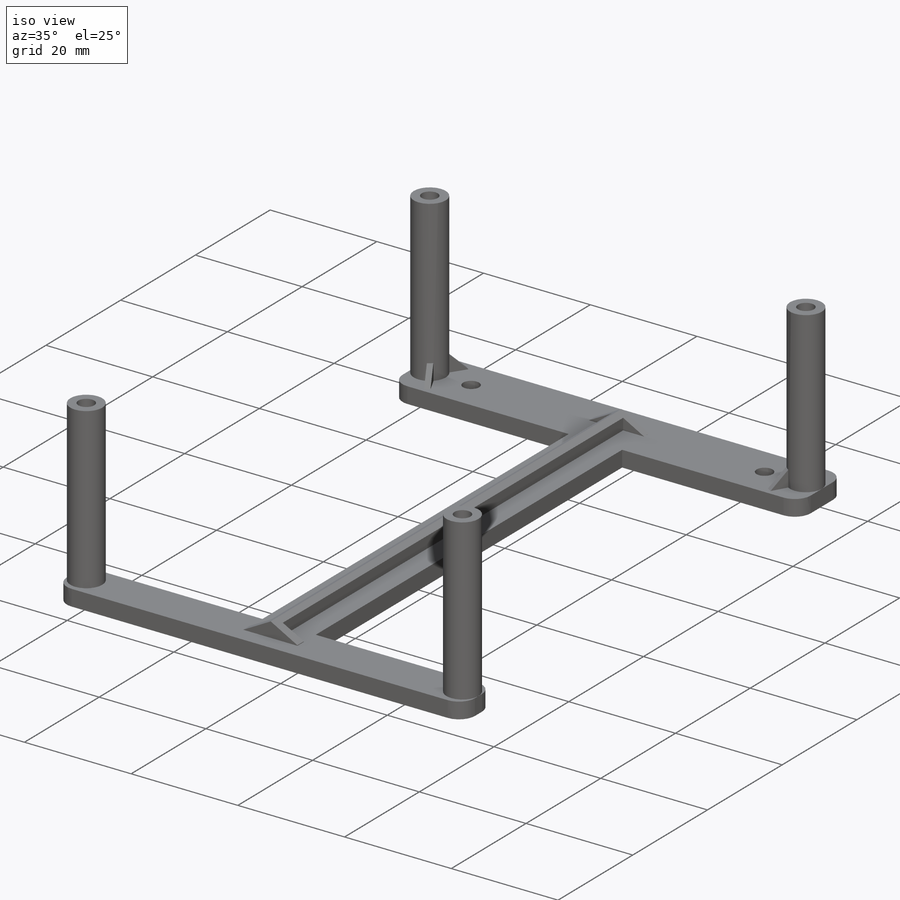
[diagram: iso view]
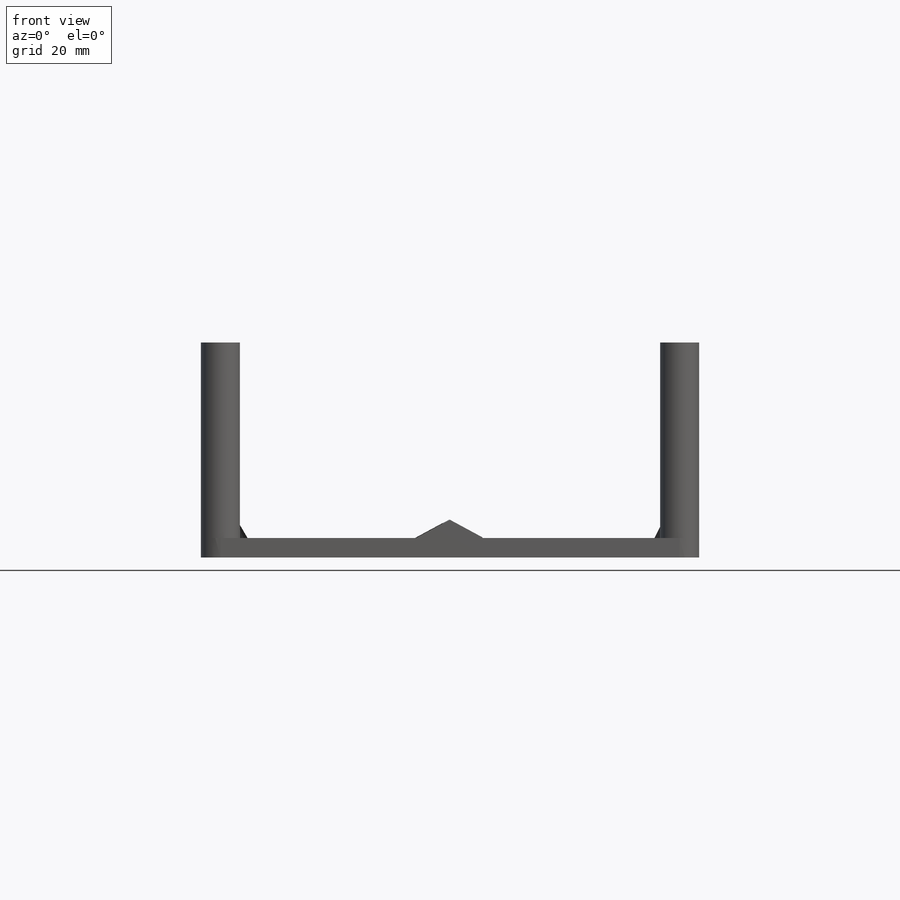
[diagram: front view]
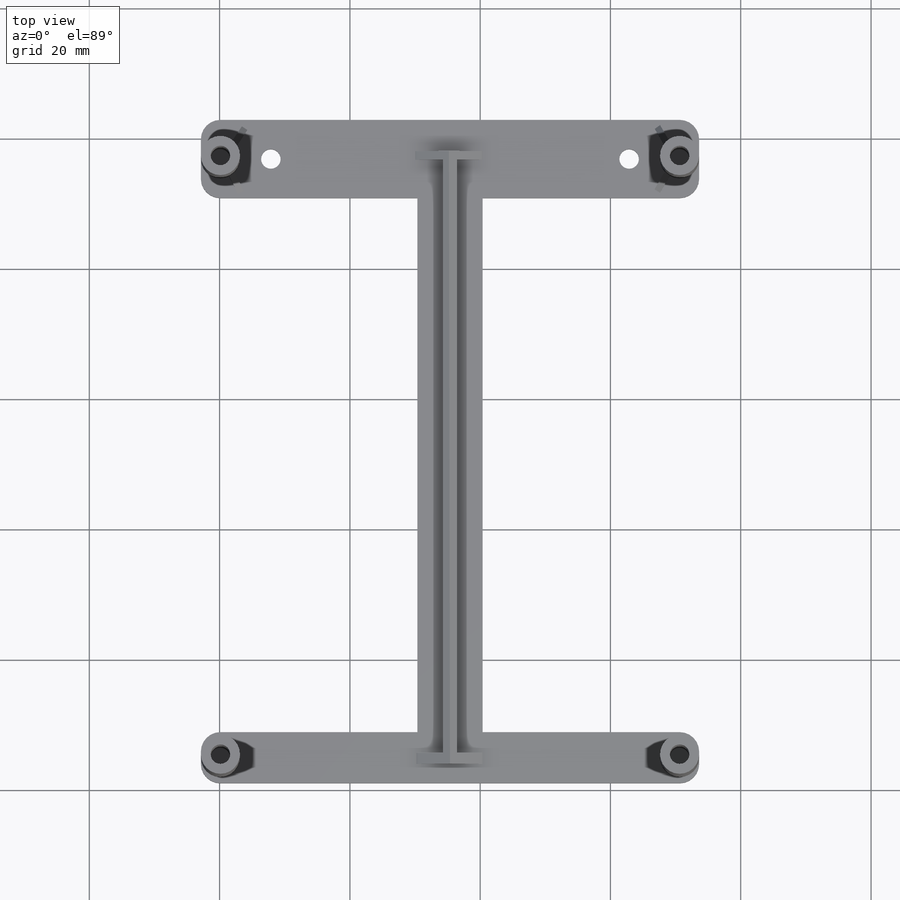
[diagram: top view]
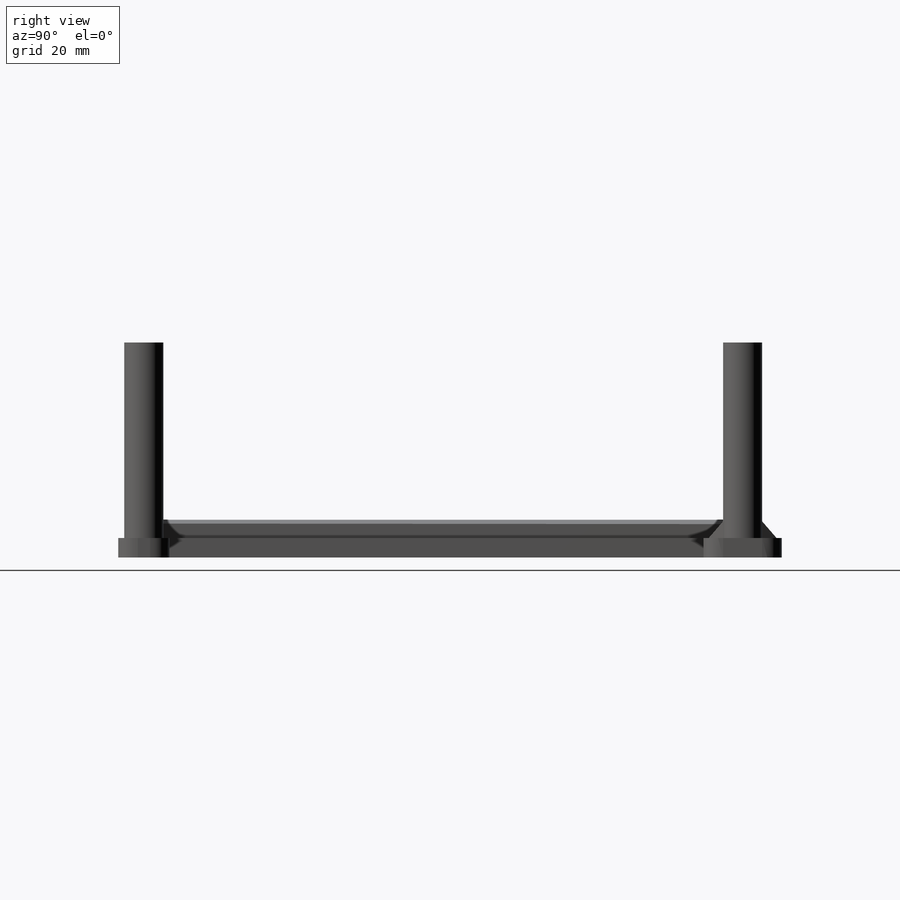
[diagram: right view]
SOLIDWORKS PART (.sldprt)
format: sldprt  version: not decoded by parser v0  size: 562,176 bytes
history: native  units: mm
features: sketch x24, extrude x9, cut_extrude x5, sweep x5, plane x3, material x1, fillet x1 (+9 scaffold rows collapsed)
feature tree (57):
  scaffold x9  (default folders/planes/origin — collapsed)
  material  "材质 <未指定>"
  plane  "前视基准面"
  plane  "上视基准面"
  plane  "右视基准面"
  sketch  "草图1"  dims[c1.D3=3.0mm c1.D4=~4.27046mm c1.D6=3.0mm c1.D1=12.0mm c1.D2=70.5mm c2.D4=6.0mm c2.D5=7.75mm c2.D7=7.75mm c2.D8=6.0mm]
  extrude  "凸台-拉伸2"  Depth=4mm
  sketch  "草图3"  dims[D1=82.0mm D2=5.0mm D3=5.0mm]
  extrude  "凸台-拉伸3"  Depth=3mm
  sketch  "草图4"  dims[D1=35.25mm D2=35.25mm D3=7.85mm D4=~18.068908mm]
  extrude  "凸台-拉伸4"  Depth=3mm
  sketch  "草图5"
  cut_extrude  "切除-拉伸1"  Depth=1mm
  sketch  "草图6"  dims[c1.D1=6.0mm c1.D2=6.0mm c1.D3=6.0mm c1.D4=6.0mm c2.D2=6.0mm]
  extrude  "凸台-拉伸5"  Depth=30mm
  sketch  "草图7"  dims[D1=12.0mm]
  extrude  "凸台-拉伸6"  Depth=3mm
  sketch  "草图8"  dims[D1=12.0mm]
  extrude  "凸台-拉伸7"  Depth=3mm
  sketch  "草图10"  dims[D1=7.85mm]
  extrude  "凸台-拉伸8"  Depth=3mm
  sketch  "草图11"  dims[D1=7.85mm]
  extrude  "凸台-拉伸9"  Depth=3mm
  fillet  "圆角1"  Radius=3mm
  sketch  "草图12"  dims[c1.D1=~3.170757mm c2.D1=120.0deg c2.D2=6.0mm c2.D3=6.0mm c2.D4=1.0mm c2.D5=1.0mm c2.D6=~4.520127mm c3.D6=~101.779671deg c4.D6=~7.164807mm c5.D6=60.0deg c5.D7=~4.520127mm c6.D7=60.0deg c6.D8=1.0mm c6.D9=6.0mm c6.D10=6.0mm c6.D11=1.0mm c6.D12=~1.315664mm]
  extrude  "凸台-拉伸10"  Depth=3mm
  sketch  "草图13"
  sketch  "草图14"
  sweep  "切除-扫描1"
  sketch  "草图15"
  sketch  "草图16"
  sweep  "切除-扫描2"
  sketch  "草图17"
  sketch  "草图18"
  sweep  "切除-扫描3"
  sketch  "草图19"
  sketch  "草图20"
  sweep  "切除-扫描4"
  sketch  "草图24"
  sketch  "草图25"
  sweep  "切除-扫描8"
  sketch  "草图26"  dims[D1=3.0mm]
  cut_extrude  "切除-拉伸2"  Depth=30mm
  sketch  "草图28"  dims[D1=3.0mm]
  cut_extrude  "切除-拉伸3"  Depth=30mm
  sketch  "草图29"  dims[D1=3.0mm]
  sketch  "草图30"  dims[D1=3.0mm]
  cut_extrude  "切除-拉伸4"  Depth=30mm
  cut_extrude  "切除-拉伸5"  Depth=30mm
decode coverage: 28 of 44 modeling features carry decoded parameters
note: ~ marks probable driven/reference dimensions
summary: profile_refs inferred from adjacent sketches, not decoded
note: suppression state not decoded; provenance and decode notes live in map.json
